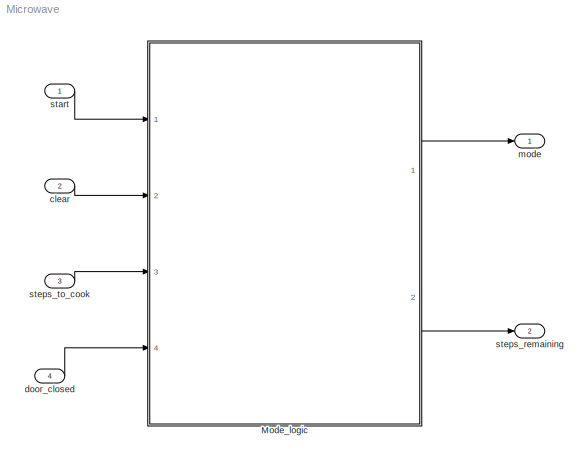
MODEL Microwave
KIND model
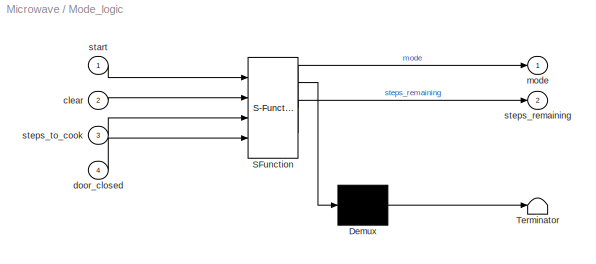
BLOCK [SubSystem] Mode_logic
  ErrorFcn = Stateflow.Translate.translate
  PermitHierarchicalResolution = ExplicitOnly
  Ports = [4, 2]
  RequestExecContextInheritance = off
  SFBlockType = Chart
  SID = 1
  TreatAsAtomicUnit = on
  Variant = off
BLOCK [Demux] Mode_logic/ Demux 
  Outputs = 1
  Ports = [1, 1]
  SID = 1::21
BLOCK [S-Function] Mode_logic/ SFunction 
  EnableBusSupport = off
  FunctionName = sf_sfun
  PortCounts = [4 3]
  Ports = [4, 3]
  SFcnIsStateOwnerBlock = off
  SFunctionDeploymentMode = off
  SID = 1::20
  Tag = Stateflow S-Function Microwave 1
BLOCK [Terminator] Mode_logic/ Terminator 
  SID = 1::22
BLOCK [Inport] Mode_logic/clear
  IconDisplay = Port number
  Port = 2
  SID = 1::2
BLOCK [Inport] Mode_logic/door_closed
  IconDisplay = Port number
  Port = 4
  SID = 1::4
BLOCK [Outport] Mode_logic/mode
  IconDisplay = Port number
  SID = 1::8
BLOCK [Inport] Mode_logic/start
  IconDisplay = Port number
  SID = 1::1
BLOCK [Outport] Mode_logic/steps_remaining
  IconDisplay = Port number
  Port = 2
  SID = 1::9
BLOCK [Inport] Mode_logic/steps_to_cook
  IconDisplay = Port number
  Port = 3
  SID = 1::3
BLOCK [Inport] clear
  IconDisplay = Port number
  Port = 2
  SID = 11
BLOCK [Inport] door_closed
  IconDisplay = Port number
  Port = 4
  SID = 13
BLOCK [Outport] mode
  IconDisplay = Port number
  SID = 14
BLOCK [Inport] start
  IconDisplay = Port number
  SID = 10
BLOCK [Outport] steps_remaining
  IconDisplay = Port number
  Port = 2
  SID = 16
BLOCK [Inport] steps_to_cook
  IconDisplay = Port number
  Port = 3
  SID = 12
LINE Mode_logic/ Demux :1 -> Mode_logic/ Terminator :1
LINE Mode_logic/ SFunction :1 -> Mode_logic/ Demux :1
LINE Mode_logic/ SFunction :2 -> Mode_logic/mode:1
LINE Mode_logic/ SFunction :3 -> Mode_logic/steps_remaining:1
LINE Mode_logic/clear:1 -> Mode_logic/ SFunction :2
LINE Mode_logic/door_closed:1 -> Mode_logic/ SFunction :4
LINE Mode_logic/start:1 -> Mode_logic/ SFunction :1
LINE Mode_logic/steps_to_cook:1 -> Mode_logic/ SFunction :3
LINE Mode_logic:1 -> mode:1
LINE Mode_logic:2 -> steps_remaining:1
LINE clear:1 -> Mode_logic:2
LINE door_closed:1 -> Mode_logic:4
LINE start:1 -> Mode_logic:1
LINE steps_to_cook:1 -> Mode_logic:3
CHART Mode_logic states=4 transitions=12
  STATE_LABEL 'SETUP\\nentry:\\nmode=1;\\nsteps_remaining = steps_to_cook;'
  STATE_LABEL 'COOKING\\nentry: mode=2;'
  STATE_LABEL 'SUSPENDED\\nentry: mode=3;'
  STATE_LABEL 'RUNNING\\n'
